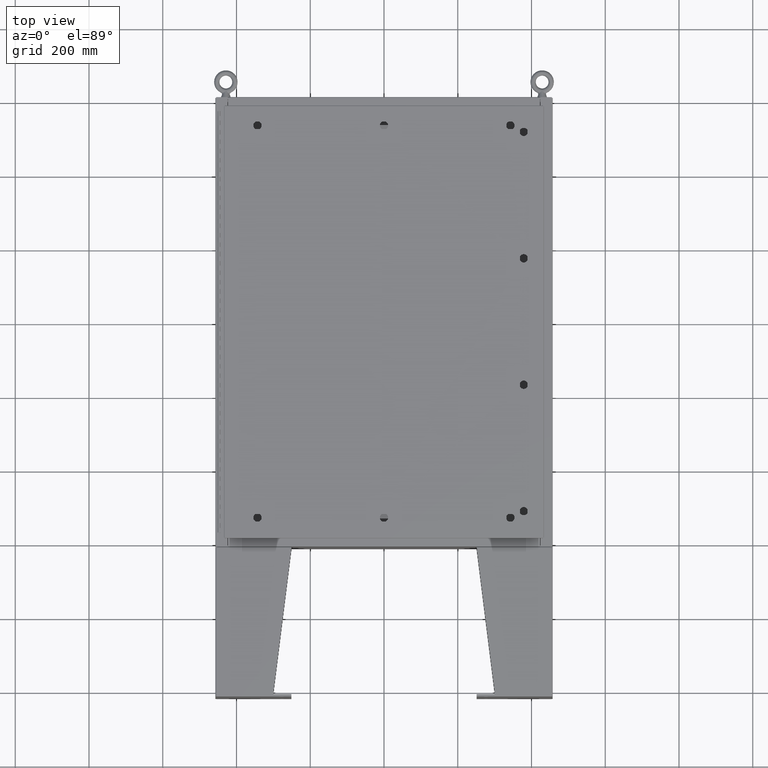
[diagram: clean part render]
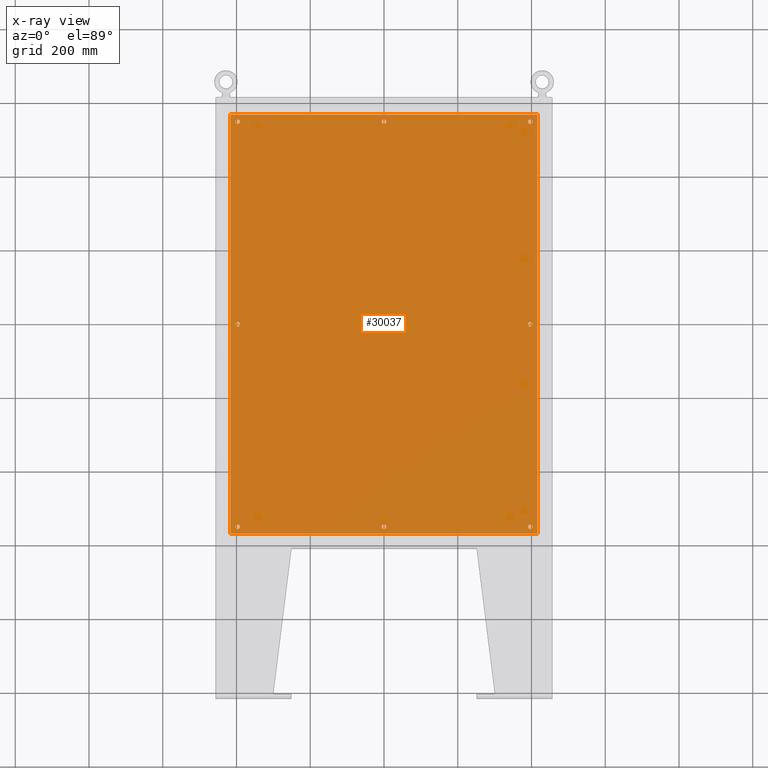
[diagram: x-ray — body ghosted, one internal face saturated and labeled with its STEP entity id]
A machine part, top view, then the same camera in x-ray: the body is ghosted and one INTERNAL B-rep face — a face not visible from any outside direction — is saturated and labeled: STEP entity #30037.
In plain terms, the highlighted planar face has unit normal (0, 0, -1).
Its self-contained STEP definition (entity closure, byte-faithful):
#499 = FACE_BOUND ( 'NONE', #41039, .T. ) ;
#834 = DIRECTION ( 'NONE',  ( -0.0000000000000000000, -0.0000000000000000000, 1.000000000000000000 ) ) ;
#887 = CARTESIAN_POINT ( 'NONE',  ( 15.62500000000000400, 21.62500000000000400, -0.1039999999999999800 ) ) ;
#1145 = DIRECTION ( 'NONE',  ( -1.000000000000000000, 0.0000000000000000000, 0.0000000000000000000 ) ) ;
#1619 = CARTESIAN_POINT ( 'NONE',  ( -15.37500000000000500, 21.62500000000000400, -0.1039999999999999800 ) ) ;
#1798 = FACE_BOUND ( 'NONE', #10295, .T. ) ;
#1856 = CIRCLE ( 'NONE', #31047, 0.2499999999999987000 ) ;
#2077 = CARTESIAN_POINT ( 'NONE',  ( 16.38300000000000600, 22.38300000000000300, -0.1040000000000009100 ) ) ;
#2200 = AXIS2_PLACEMENT_3D ( 'NONE', #21543, #50531, #25686 ) ;
#2304 = VERTEX_POINT ( 'NONE', #32531 ) ;
#2464 = EDGE_CURVE ( 'NONE', #6428, #29479, #32180, .T. ) ;
#2815 = DIRECTION ( 'NONE',  ( -1.000000000000000000, 0.0000000000000000000, 0.0000000000000000000 ) ) ;
#3256 = ORIENTED_EDGE ( 'NONE', *, *, #2464, .T. ) ;
#4671 = CIRCLE ( 'NONE', #13294, 0.2500000000000011700 ) ;
#4969 = DIRECTION ( 'NONE',  ( -1.000000000000000000, 0.0000000000000000000, 0.0000000000000000000 ) ) ;
#5086 = DIRECTION ( 'NONE',  ( -0.0000000000000000000, -0.0000000000000000000, 1.000000000000000000 ) ) ;
#5176 = VERTEX_POINT ( 'NONE', #24107 ) ;
#5189 = CARTESIAN_POINT ( 'NONE',  ( -15.87500000000000700, 21.62500000000000400, -0.1039999999999999800 ) ) ;
#5500 = CIRCLE ( 'NONE', #36523, 0.2500000000000011700 ) ;
#5817 = EDGE_CURVE ( 'NONE', #2304, #26064, #52401, .T. ) ;
#6428 = VERTEX_POINT ( 'NONE', #35482 ) ;
#6479 = AXIS2_PLACEMENT_3D ( 'NONE', #29765, #5086, #33900 ) ;
#6504 = ORIENTED_EDGE ( 'NONE', *, *, #15880, .F. ) ;
#6620 = EDGE_LOOP ( 'NONE', ( #48917, #27209 ) ) ;
#6653 = AXIS2_PLACEMENT_3D ( 'NONE', #887, #29645, #4969 ) ;
#6746 = CARTESIAN_POINT ( 'NONE',  ( 0.0000000000000000000, 21.62500000000000400, -0.1039999999999999800 ) ) ;
#7900 = CARTESIAN_POINT ( 'NONE',  ( 15.62500000000000200, 2.997136362123521200E-015, -0.1039999999999999800 ) ) ;
#8570 = CIRCLE ( 'NONE', #2200, 0.2500000000000008900 ) ;
#8761 = FACE_BOUND ( 'NONE', #24514, .T. ) ;
#8815 = EDGE_CURVE ( 'NONE', #29479, #6428, #13514, .T. ) ;
#8925 = EDGE_LOOP ( 'NONE', ( #29615, #21670 ) ) ;
#9071 = DIRECTION ( 'NONE',  ( -0.0000000000000000000, -0.0000000000000000000, 1.000000000000000000 ) ) ;
#9806 = DIRECTION ( 'NONE',  ( -1.000000000000000000, 0.0000000000000000000, 0.0000000000000000000 ) ) ;
#10052 = DIRECTION ( 'NONE',  ( -0.0000000000000000000, -0.0000000000000000000, 1.000000000000000000 ) ) ;
#10295 = EDGE_LOOP ( 'NONE', ( #50287, #16652 ) ) ;
#10359 = VECTOR ( 'NONE', #31831, 39.37007874015748100 ) ;
#11202 = VERTEX_POINT ( 'NONE', #2077 ) ;
#11287 = VERTEX_POINT ( 'NONE', #44473 ) ;
#11462 = ORIENTED_EDGE ( 'NONE', *, *, #15033, .F. ) ;
#11682 = AXIS2_PLACEMENT_3D ( 'NONE', #7900, #10052, #1145 ) ;
#11880 = EDGE_CURVE ( 'NONE', #50455, #35503, #1856, .T. ) ;
#11884 = PLANE ( 'NONE',  #33773 ) ;
#12112 = VERTEX_POINT ( 'NONE', #12992 ) ;
#12992 = CARTESIAN_POINT ( 'NONE',  ( 16.38300000000000600, -22.38300000000000300, -0.1040000000000009100 ) ) ;
#13294 = AXIS2_PLACEMENT_3D ( 'NONE', #41730, #16914, #45806 ) ;
#13514 = CIRCLE ( 'NONE', #24632, 0.2500000000000008900 ) ;
#13802 = AXIS2_PLACEMENT_3D ( 'NONE', #51356, #20823, #49596 ) ;
#13855 = DIRECTION ( 'NONE',  ( -0.0000000000000000000, -0.0000000000000000000, 1.000000000000000000 ) ) ;
#13964 = EDGE_CURVE ( 'NONE', #11287, #14656, #38896, .T. ) ;
#14134 = EDGE_CURVE ( 'NONE', #17898, #40139, #29186, .T. ) ;
#14656 = VERTEX_POINT ( 'NONE', #50732 ) ;
#14939 = DIRECTION ( 'NONE',  ( -0.0000000000000000000, -0.0000000000000000000, 1.000000000000000000 ) ) ;
#15033 = EDGE_CURVE ( 'NONE', #45114, #5176, #25892, .T. ) ;
#15790 = CIRCLE ( 'NONE', #13802, 0.2499999999999987000 ) ;
#15880 = EDGE_CURVE ( 'NONE', #5176, #12112, #47746, .T. ) ;
#16009 = VERTEX_POINT ( 'NONE', #31370 ) ;
#16652 = ORIENTED_EDGE ( 'NONE', *, *, #43840, .T. ) ;
#16860 = VECTOR ( 'NONE', #38690, 39.37007874015748100 ) ;
#16914 = DIRECTION ( 'NONE',  ( -0.0000000000000000000, -0.0000000000000000000, 1.000000000000000000 ) ) ;
#17037 = EDGE_CURVE ( 'NONE', #11202, #45114, #40789, .T. ) ;
#17352 = CARTESIAN_POINT ( 'NONE',  ( 15.37500000000000000, 3.027752532102204900E-015, -0.1039999999999999800 ) ) ;
#17602 = DIRECTION ( 'NONE',  ( 1.000000000000000000, -0.0000000000000000000, -0.0000000000000000000 ) ) ;
#17898 = VERTEX_POINT ( 'NONE', #36010 ) ;
#18692 = ORIENTED_EDGE ( 'NONE', *, *, #23605, .T. ) ;
#19224 = DIRECTION ( 'NONE',  ( -0.0000000000000000000, -0.0000000000000000000, 1.000000000000000000 ) ) ;
#19718 = FACE_BOUND ( 'NONE', #39720, .T. ) ;
#20676 = CARTESIAN_POINT ( 'NONE',  ( 15.37500000000000500, -21.62500000000000400, -0.1039999999999999800 ) ) ;
#20823 = DIRECTION ( 'NONE',  ( -0.0000000000000000000, -0.0000000000000000000, 1.000000000000000000 ) ) ;
#20827 = EDGE_CURVE ( 'NONE', #52198, #16009, #5500, .T. ) ;
#21020 = CARTESIAN_POINT ( 'NONE',  ( -15.62500000000000200, -8.298848852119578500E-016, -0.1039999999999999800 ) ) ;
#21543 = CARTESIAN_POINT ( 'NONE',  ( -15.62500000000000500, 21.62500000000000400, -0.1039999999999999800 ) ) ;
#21670 = ORIENTED_EDGE ( 'NONE', *, *, #22484, .T. ) ;
#21855 = ORIENTED_EDGE ( 'NONE', *, *, #13964, .T. ) ;
#21959 = DIRECTION ( 'NONE',  ( -1.000000000000000000, 0.0000000000000000000, 0.0000000000000000000 ) ) ;
#21983 = CARTESIAN_POINT ( 'NONE',  ( -15.62500000000000400, -21.62500000000000400, -0.1039999999999999800 ) ) ;
#22066 = VERTEX_POINT ( 'NONE', #5189 ) ;
#22180 = EDGE_CURVE ( 'NONE', #36637, #48657, #52731, .T. ) ;
#22443 = ORIENTED_EDGE ( 'NONE', *, *, #48625, .T. ) ;
#22484 = EDGE_CURVE ( 'NONE', #48657, #36637, #41214, .T. ) ;
#23605 = EDGE_CURVE ( 'NONE', #26064, #2304, #15790, .T. ) ;
#24107 = CARTESIAN_POINT ( 'NONE',  ( -16.38299999999999600, -22.38300000000000300, -0.1040000000000009400 ) ) ;
#24243 = EDGE_LOOP ( 'NONE', ( #40847, #18692 ) ) ;
#24275 = DIRECTION ( 'NONE',  ( -1.000000000000000000, 0.0000000000000000000, -0.0000000000000000000 ) ) ;
#24514 = EDGE_LOOP ( 'NONE', ( #44325, #22443 ) ) ;
#24545 = CARTESIAN_POINT ( 'NONE',  ( -15.62500000000000500, 21.62500000000000400, -0.1039999999999999800 ) ) ;
#24632 = AXIS2_PLACEMENT_3D ( 'NONE', #51055, #52872, #48727 ) ;
#25071 = VECTOR ( 'NONE', #17602, 39.37007874015748100 ) ;
#25115 = VERTEX_POINT ( 'NONE', #1619 ) ;
#25373 = CARTESIAN_POINT ( 'NONE',  ( 0.0000000000000000000, 21.62500000000000400, -0.1039999999999999800 ) ) ;
#25578 = CARTESIAN_POINT ( 'NONE',  ( -16.38299999999999600, 22.38300000000000300, -0.1040000000000009100 ) ) ;
#25686 = DIRECTION ( 'NONE',  ( -1.000000000000000000, 0.0000000000000000000, 0.0000000000000000000 ) ) ;
#25892 = LINE ( 'NONE', #47103, #16860 ) ;
#26064 = VERTEX_POINT ( 'NONE', #51661 ) ;
#26486 = AXIS2_PLACEMENT_3D ( 'NONE', #24545, #53120, #52769 ) ;
#27209 = ORIENTED_EDGE ( 'NONE', *, *, #29881, .T. ) ;
#27520 = CARTESIAN_POINT ( 'NONE',  ( 15.62500000000000400, 21.62500000000000400, -0.1039999999999999800 ) ) ;
#28307 = CARTESIAN_POINT ( 'NONE',  ( 15.87500000000000200, -21.62500000000000400, -0.1039999999999999800 ) ) ;
#28428 = DIRECTION ( 'NONE',  ( -1.000000000000000000, -0.0000000000000000000, -0.0000000000000000000 ) ) ;
#29183 = ORIENTED_EDGE ( 'NONE', *, *, #35690, .T. ) ;
#29186 = CIRCLE ( 'NONE', #37677, 0.2499999999999987000 ) ;
#29479 = VERTEX_POINT ( 'NONE', #34914 ) ;
#29592 = DIRECTION ( 'NONE',  ( -1.000000000000000000, 0.0000000000000000000, 0.0000000000000000000 ) ) ;
#29615 = ORIENTED_EDGE ( 'NONE', *, *, #22180, .T. ) ;
#29645 = DIRECTION ( 'NONE',  ( -0.0000000000000000000, -0.0000000000000000000, 1.000000000000000000 ) ) ;
#29665 = ORIENTED_EDGE ( 'NONE', *, *, #17037, .F. ) ;
#29765 = CARTESIAN_POINT ( 'NONE',  ( 15.62500000000000400, -21.62500000000000400, -0.1039999999999999800 ) ) ;
#29881 = EDGE_CURVE ( 'NONE', #22066, #25115, #41174, .T. ) ;
#30037 = ADVANCED_FACE ( 'NONE', ( #1798, #499, #41796, #32024, #30757, #19718, #8761, #51449, #40497 ), #11884, .T. ) ;
#30757 = FACE_BOUND ( 'NONE', #24243, .T. ) ;
#31047 = AXIS2_PLACEMENT_3D ( 'NONE', #37957, #9071, #33788 ) ;
#31370 = CARTESIAN_POINT ( 'NONE',  ( -0.2500000000000011700, -21.62500000000000400, -0.1039999999999999800 ) ) ;
#31798 = EDGE_CURVE ( 'NONE', #25115, #22066, #8570, .T. ) ;
#31831 = DIRECTION ( 'NONE',  ( 0.0000000000000000000, 1.000000000000000000, 0.0000000000000000000 ) ) ;
#32024 = FACE_BOUND ( 'NONE', #38723, .T. ) ;
#32180 = CIRCLE ( 'NONE', #35569, 0.2500000000000008900 ) ;
#32531 = CARTESIAN_POINT ( 'NONE',  ( -15.37500000000000500, -21.62500000000000400, -0.1039999999999999800 ) ) ;
#33170 = EDGE_CURVE ( 'NONE', #12112, #11202, #43401, .T. ) ;
#33773 = AXIS2_PLACEMENT_3D ( 'NONE', #40850, #49079, #24275 ) ;
#33788 = DIRECTION ( 'NONE',  ( -1.000000000000000000, 0.0000000000000000000, 0.0000000000000000000 ) ) ;
#33900 = DIRECTION ( 'NONE',  ( -1.000000000000000000, 0.0000000000000000000, 0.0000000000000000000 ) ) ;
#34914 = CARTESIAN_POINT ( 'NONE',  ( -15.37500000000000000, -8.298848852119578500E-016, -0.1039999999999999800 ) ) ;
#35482 = CARTESIAN_POINT ( 'NONE',  ( -15.87500000000000200, -7.992687152332741600E-016, -0.1039999999999999800 ) ) ;
#35503 = VERTEX_POINT ( 'NONE', #28307 ) ;
#35569 = AXIS2_PLACEMENT_3D ( 'NONE', #21020, #43268, #49340 ) ;
#35690 = EDGE_CURVE ( 'NONE', #35503, #50455, #48412, .T. ) ;
#35982 = CARTESIAN_POINT ( 'NONE',  ( 16.38300000000000600, -22.38300000000000300, -0.1040000000000009100 ) ) ;
#36010 = CARTESIAN_POINT ( 'NONE',  ( 15.87500000000000200, 21.62500000000000400, -0.1039999999999999800 ) ) ;
#36523 = AXIS2_PLACEMENT_3D ( 'NONE', #49891, #14939, #21959 ) ;
#36637 = VERTEX_POINT ( 'NONE', #37741 ) ;
#37677 = AXIS2_PLACEMENT_3D ( 'NONE', #27520, #19224, #2815 ) ;
#37741 = CARTESIAN_POINT ( 'NONE',  ( 15.87500000000000200, 2.997136362123521200E-015, -0.1039999999999999800 ) ) ;
#37957 = CARTESIAN_POINT ( 'NONE',  ( 15.62500000000000400, -21.62500000000000400, -0.1039999999999999800 ) ) ;
#38065 = AXIS2_PLACEMENT_3D ( 'NONE', #21983, #45749, #52054 ) ;
#38107 = EDGE_CURVE ( 'NONE', #14656, #11287, #39852, .T. ) ;
#38690 = DIRECTION ( 'NONE',  ( 0.0000000000000000000, -1.000000000000000000, 0.0000000000000000000 ) ) ;
#38723 = EDGE_LOOP ( 'NONE', ( #51296, #3256 ) ) ;
#38896 = CIRCLE ( 'NONE', #47005, 0.2499999999999998600 ) ;
#39720 = EDGE_LOOP ( 'NONE', ( #29183, #52680 ) ) ;
#39852 = CIRCLE ( 'NONE', #53178, 0.2499999999999998600 ) ;
#40139 = VERTEX_POINT ( 'NONE', #45026 ) ;
#40497 = FACE_OUTER_BOUND ( 'NONE', #41015, .T. ) ;
#40789 = LINE ( 'NONE', #44276, #50423 ) ;
#40847 = ORIENTED_EDGE ( 'NONE', *, *, #5817, .T. ) ;
#40850 = CARTESIAN_POINT ( 'NONE',  ( 0.0000000000000000000, 0.0000000000000000000, -0.1039999999999999800 ) ) ;
#41015 = EDGE_LOOP ( 'NONE', ( #6504, #11462, #29665, #43598 ) ) ;
#41039 = EDGE_LOOP ( 'NONE', ( #21855, #47824 ) ) ;
#41174 = CIRCLE ( 'NONE', #26486, 0.2500000000000008900 ) ;
#41214 = CIRCLE ( 'NONE', #11682, 0.2500000000000008900 ) ;
#41730 = CARTESIAN_POINT ( 'NONE',  ( 0.0000000000000000000, -21.62500000000000400, -0.1039999999999999800 ) ) ;
#41796 = FACE_BOUND ( 'NONE', #8925, .T. ) ;
#43268 = DIRECTION ( 'NONE',  ( -0.0000000000000000000, -0.0000000000000000000, 1.000000000000000000 ) ) ;
#43401 = LINE ( 'NONE', #35982, #10359 ) ;
#43598 = ORIENTED_EDGE ( 'NONE', *, *, #33170, .F. ) ;
#43840 = EDGE_CURVE ( 'NONE', #16009, #52198, #4671, .T. ) ;
#44276 = CARTESIAN_POINT ( 'NONE',  ( 16.50000000000000700, 22.38300000000000300, -0.1040000000000009400 ) ) ;
#44325 = ORIENTED_EDGE ( 'NONE', *, *, #14134, .T. ) ;
#44473 = CARTESIAN_POINT ( 'NONE',  ( 0.2499999999999998600, 21.62500000000000400, -0.1039999999999999800 ) ) ;
#45026 = CARTESIAN_POINT ( 'NONE',  ( 15.37500000000000500, 21.62500000000000400, -0.1039999999999999800 ) ) ;
#45114 = VERTEX_POINT ( 'NONE', #25578 ) ;
#45749 = DIRECTION ( 'NONE',  ( -0.0000000000000000000, -0.0000000000000000000, 1.000000000000000000 ) ) ;
#45806 = DIRECTION ( 'NONE',  ( -1.000000000000000000, 0.0000000000000000000, 0.0000000000000000000 ) ) ;
#47005 = AXIS2_PLACEMENT_3D ( 'NONE', #6746, #52725, #49459 ) ;
#47103 = CARTESIAN_POINT ( 'NONE',  ( -16.38299999999999600, 22.38300000000000300, -0.1040000000000009100 ) ) ;
#47746 = LINE ( 'NONE', #50556, #25071 ) ;
#47824 = ORIENTED_EDGE ( 'NONE', *, *, #38107, .T. ) ;
#48302 = CIRCLE ( 'NONE', #6653, 0.2499999999999987000 ) ;
#48412 = CIRCLE ( 'NONE', #6479, 0.2499999999999987000 ) ;
#48625 = EDGE_CURVE ( 'NONE', #40139, #17898, #48302, .T. ) ;
#48657 = VERTEX_POINT ( 'NONE', #17352 ) ;
#48727 = DIRECTION ( 'NONE',  ( -1.000000000000000000, 0.0000000000000000000, 0.0000000000000000000 ) ) ;
#48878 = CARTESIAN_POINT ( 'NONE',  ( 0.2500000000000011700, -21.62500000000000400, -0.1039999999999999800 ) ) ;
#48917 = ORIENTED_EDGE ( 'NONE', *, *, #31798, .T. ) ;
#49079 = DIRECTION ( 'NONE',  ( 0.0000000000000000000, 0.0000000000000000000, -1.000000000000000000 ) ) ;
#49340 = DIRECTION ( 'NONE',  ( -1.000000000000000000, 0.0000000000000000000, 0.0000000000000000000 ) ) ;
#49459 = DIRECTION ( 'NONE',  ( -1.000000000000000000, 0.0000000000000000000, 0.0000000000000000000 ) ) ;
#49596 = DIRECTION ( 'NONE',  ( -1.000000000000000000, 0.0000000000000000000, 0.0000000000000000000 ) ) ;
#49718 = AXIS2_PLACEMENT_3D ( 'NONE', #50391, #13855, #9806 ) ;
#49891 = CARTESIAN_POINT ( 'NONE',  ( 0.0000000000000000000, -21.62500000000000400, -0.1039999999999999800 ) ) ;
#50287 = ORIENTED_EDGE ( 'NONE', *, *, #20827, .T. ) ;
#50391 = CARTESIAN_POINT ( 'NONE',  ( 15.62500000000000200, 2.997136362123521200E-015, -0.1039999999999999800 ) ) ;
#50423 = VECTOR ( 'NONE', #28428, 39.37007874015748100 ) ;
#50455 = VERTEX_POINT ( 'NONE', #20676 ) ;
#50531 = DIRECTION ( 'NONE',  ( -0.0000000000000000000, -0.0000000000000000000, 1.000000000000000000 ) ) ;
#50556 = CARTESIAN_POINT ( 'NONE',  ( -16.49999999999999600, -22.38300000000000300, -0.1040000000000009400 ) ) ;
#50732 = CARTESIAN_POINT ( 'NONE',  ( -0.2499999999999998600, 21.62500000000000400, -0.1039999999999999800 ) ) ;
#51055 = CARTESIAN_POINT ( 'NONE',  ( -15.62500000000000200, -8.298848852119578500E-016, -0.1039999999999999800 ) ) ;
#51296 = ORIENTED_EDGE ( 'NONE', *, *, #8815, .T. ) ;
#51356 = CARTESIAN_POINT ( 'NONE',  ( -15.62500000000000400, -21.62500000000000400, -0.1039999999999999800 ) ) ;
#51449 = FACE_BOUND ( 'NONE', #6620, .T. ) ;
#51661 = CARTESIAN_POINT ( 'NONE',  ( -15.87500000000000200, -21.62500000000000400, -0.1039999999999999800 ) ) ;
#52054 = DIRECTION ( 'NONE',  ( -1.000000000000000000, 0.0000000000000000000, 0.0000000000000000000 ) ) ;
#52198 = VERTEX_POINT ( 'NONE', #48878 ) ;
#52401 = CIRCLE ( 'NONE', #38065, 0.2499999999999987000 ) ;
#52680 = ORIENTED_EDGE ( 'NONE', *, *, #11880, .T. ) ;
#52725 = DIRECTION ( 'NONE',  ( -0.0000000000000000000, -0.0000000000000000000, 1.000000000000000000 ) ) ;
#52731 = CIRCLE ( 'NONE', #49718, 0.2500000000000008900 ) ;
#52769 = DIRECTION ( 'NONE',  ( -1.000000000000000000, 0.0000000000000000000, 0.0000000000000000000 ) ) ;
#52872 = DIRECTION ( 'NONE',  ( -0.0000000000000000000, -0.0000000000000000000, 1.000000000000000000 ) ) ;
#53120 = DIRECTION ( 'NONE',  ( -0.0000000000000000000, -0.0000000000000000000, 1.000000000000000000 ) ) ;
#53178 = AXIS2_PLACEMENT_3D ( 'NONE', #25373, #834, #29592 ) ;